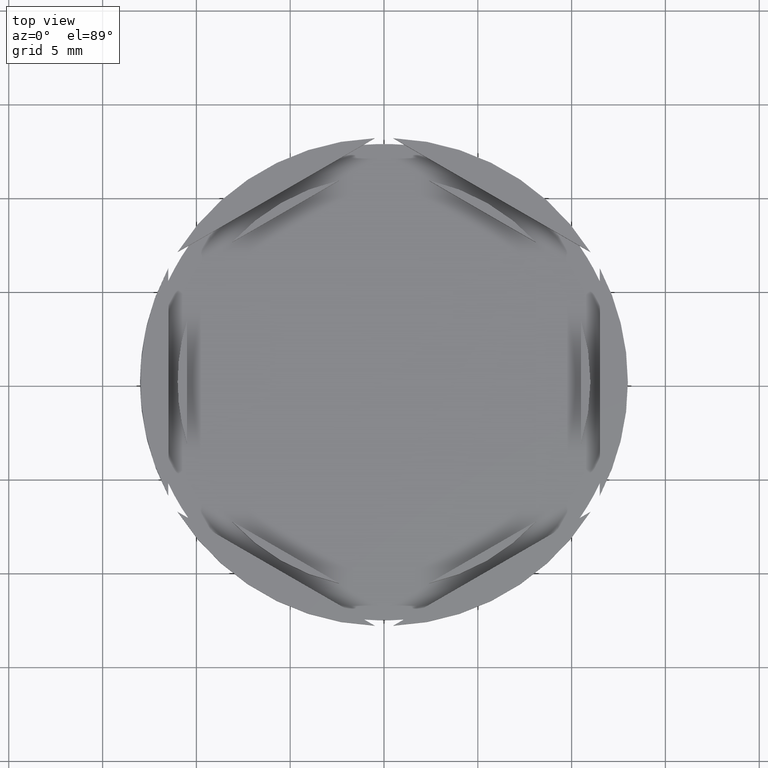
[diagram: clean part render]
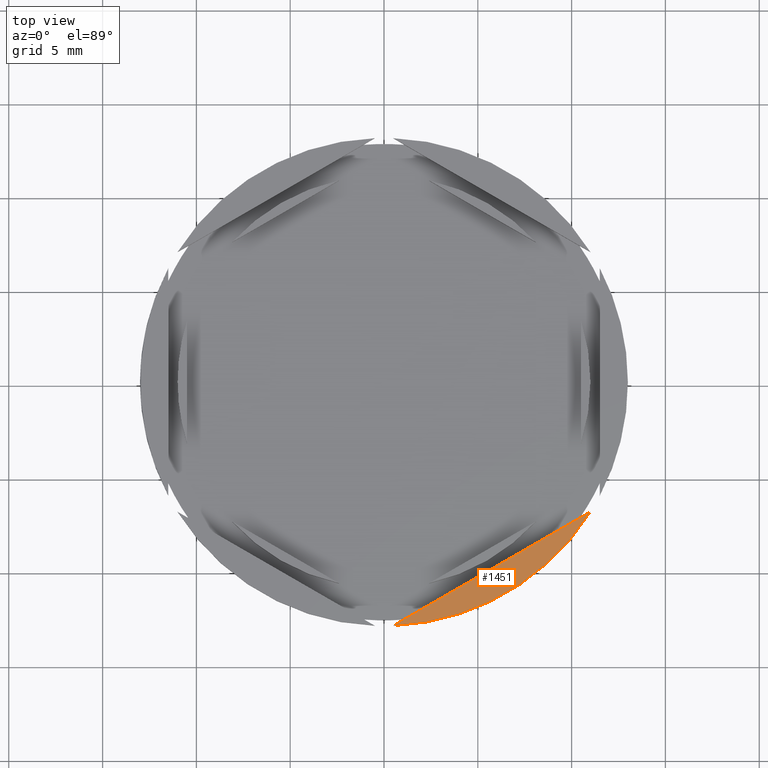
[diagram: same view with one face highlighted and labeled with its STEP entity id]
A machine part, top view. The second image highlights one B-rep face of the part: STEP entity #1451.
In plain terms, the highlighted planar face has unit normal (0, -0, 1).
Its self-contained STEP definition (entity closure, byte-faithful):
#114 = VERTEX_POINT ( 'NONE', #1316 ) ;
#204 = CARTESIAN_POINT ( 'NONE',  ( 0.4999999999999995559, -12.99038105676657651, 0.000000000000000000 ) ) ;
#286 = LINE ( 'NONE', #2304, #640 ) ;
#315 = DIRECTION ( 'NONE',  ( 0.8660254037844387076, 0.4999999999999998890, 0.000000000000000000 ) ) ;
#362 = CARTESIAN_POINT ( 'NONE',  ( 0.000000000000000000, 0.000000000000000000, 0.000000000000000000 ) ) ;
#376 = DIRECTION ( 'NONE',  ( 1.000000000000000000, 0.000000000000000000, 0.000000000000000000 ) ) ;
#393 = EDGE_CURVE ( 'NONE', #1979, #114, #286, .T. ) ;
#640 = VECTOR ( 'NONE', #315, 1000.000000000000000 ) ;
#731 = ORIENTED_EDGE ( 'NONE', *, *, #1802, .T. ) ;
#788 = DIRECTION ( 'NONE',  ( 0.000000000000000000, -0.000000000000000000, 1.000000000000000000 ) ) ;
#949 = PLANE ( 'NONE',  #2143 ) ;
#985 = DIRECTION ( 'NONE',  ( 1.000000000000000000, 0.000000000000000000, 0.000000000000000000 ) ) ;
#1316 = CARTESIAN_POINT ( 'NONE',  ( 10.99999999999999645, -6.928203230275510549, 0.000000000000000000 ) ) ;
#1451 = ADVANCED_FACE ( 'NONE', ( #1875 ), #949, .T. ) ;
#1479 = DIRECTION ( 'NONE',  ( -0.000000000000000000, -0.000000000000000000, 1.000000000000000000 ) ) ;
#1601 = ORIENTED_EDGE ( 'NONE', *, *, #393, .F. ) ;
#1746 = CIRCLE ( 'NONE', #1897, 12.99999999999999822 ) ;
#1802 = EDGE_CURVE ( 'NONE', #1979, #114, #1746, .T. ) ;
#1875 = FACE_OUTER_BOUND ( 'NONE', #2273, .T. ) ;
#1897 = AXIS2_PLACEMENT_3D ( 'NONE', #362, #1479, #376 ) ;
#1979 = VERTEX_POINT ( 'NONE', #204 ) ;
#2029 = CARTESIAN_POINT ( 'NONE',  ( 0.000000000000000000, 0.000000000000000000, 0.000000000000000000 ) ) ;
#2143 = AXIS2_PLACEMENT_3D ( 'NONE', #2029, #788, #985 ) ;
#2273 = EDGE_LOOP ( 'NONE', ( #1601, #731 ) ) ;
#2304 = CARTESIAN_POINT ( 'NONE',  ( -3.394223061414856671E-17, -13.27905619136138959, 0.000000000000000000 ) ) ;